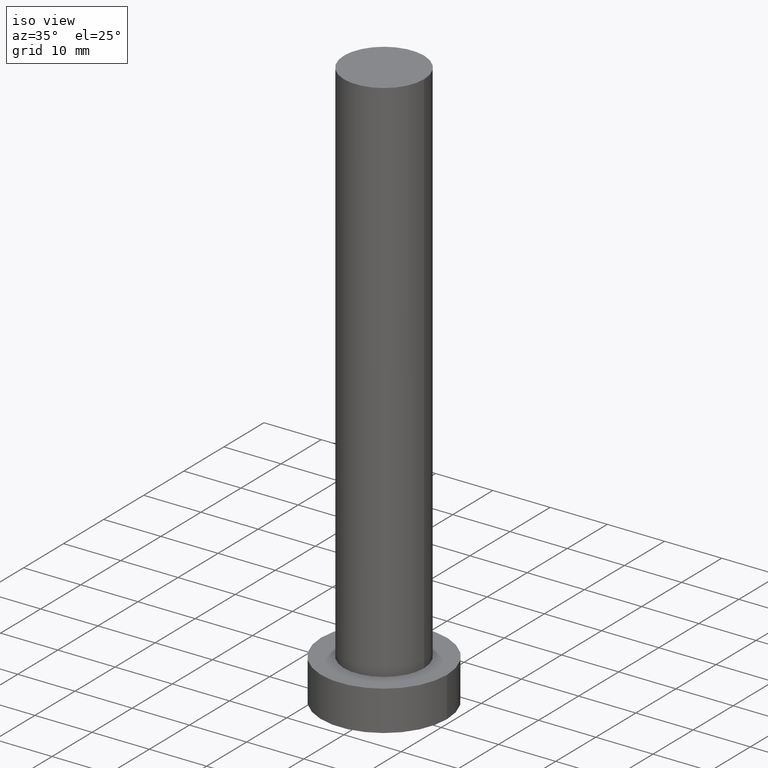
[diagram: clean part render]
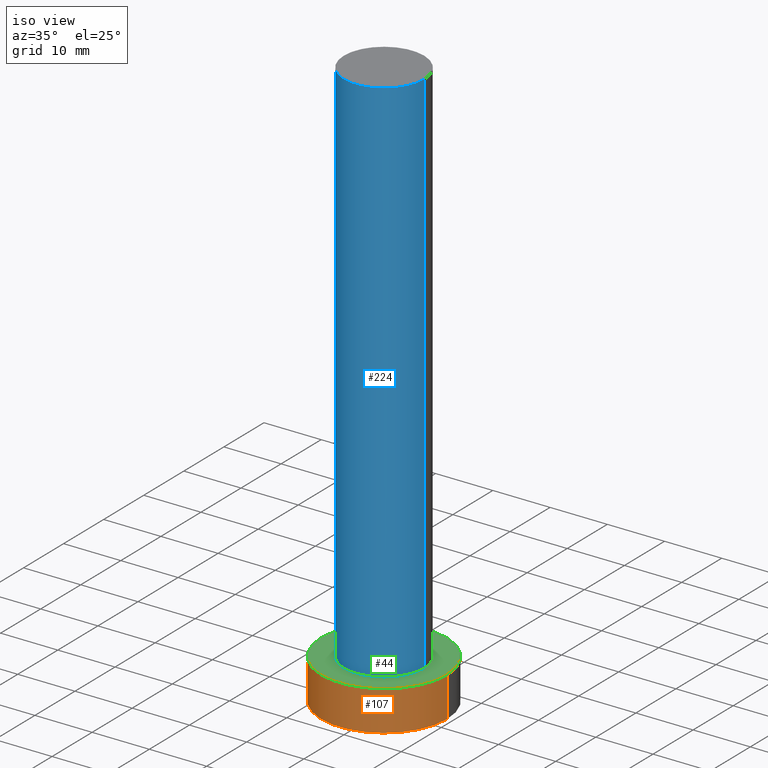
[diagram: same view with three faces highlighted in distinct colors, each labeled with its STEP entity id]
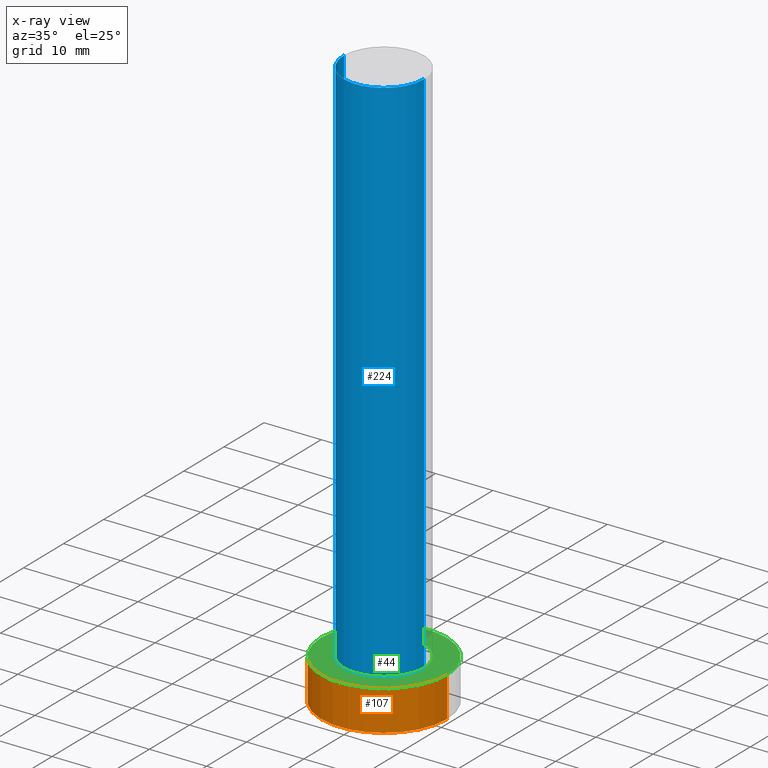
[diagram: x-ray of the same camera — body ghosted, the three highlighted faces saturated]
A machine part, iso view with three faces highlighted in distinct colors.
The next image is the same camera in x-ray (body ghosted, the three faces saturated) — at least one of them is partly hidden behind the body in this view.
Their STEP definitions:

[orange] entity #107 — the highlighted cylindrical surface (partial cylindrical patch) has radius 11 mm, axis along (-0, -0, -1).
#3 = VECTOR ( 'NONE', #215, 1000.000000000000000 ) ;
#14 = CYLINDRICAL_SURFACE ( 'NONE', #163, 11.00000000000000000 ) ;
#15 = VERTEX_POINT ( 'NONE', #96 ) ;
#20 = DIRECTION ( 'NONE',  ( -1.000000000000000000, 0.000000000000000000, 0.000000000000000000 ) ) ;
#21 = CARTESIAN_POINT ( 'NONE',  ( -11.00000000000000000, 0.000000000000000000, 7.000000000000000000 ) ) ;
#29 = CARTESIAN_POINT ( 'NONE',  ( 11.00000000000000000, 1.347111479062088405E-15, 0.000000000000000000 ) ) ;
#36 = AXIS2_PLACEMENT_3D ( 'NONE', #123, #122, #140 ) ;
#37 = DIRECTION ( 'NONE',  ( 0.000000000000000000, 0.000000000000000000, 1.000000000000000000 ) ) ;
#40 = DIRECTION ( 'NONE',  ( 1.000000000000000000, 0.000000000000000000, 0.000000000000000000 ) ) ;
#59 = DIRECTION ( 'NONE',  ( -0.000000000000000000, -0.000000000000000000, -1.000000000000000000 ) ) ;
#60 = CARTESIAN_POINT ( 'NONE',  ( -11.00000000000000000, 0.000000000000000000, 7.000000000000000000 ) ) ;
#76 = EDGE_LOOP ( 'NONE', ( #185, #117, #126, #124 ) ) ;
#81 = LINE ( 'NONE', #237, #3 ) ;
#86 = AXIS2_PLACEMENT_3D ( 'NONE', #255, #37, #40 ) ;
#96 = CARTESIAN_POINT ( 'NONE',  ( -11.00000000000000000, 0.000000000000000000, 0.000000000000000000 ) ) ;
#98 = CIRCLE ( 'NONE', #36, 11.00000000000000000 ) ;
#105 = VERTEX_POINT ( 'NONE', #29 ) ;
#107 = ADVANCED_FACE ( 'NONE', ( #113 ), #14, .T. ) ;
#113 = FACE_OUTER_BOUND ( 'NONE', #76, .T. ) ;
#117 = ORIENTED_EDGE ( 'NONE', *, *, #179, .F. ) ;
#122 = DIRECTION ( 'NONE',  ( 0.000000000000000000, 0.000000000000000000, 1.000000000000000000 ) ) ;
#123 = CARTESIAN_POINT ( 'NONE',  ( 0.000000000000000000, 0.000000000000000000, 7.000000000000000000 ) ) ;
#124 = ORIENTED_EDGE ( 'NONE', *, *, #137, .T. ) ;
#126 = ORIENTED_EDGE ( 'NONE', *, *, #201, .T. ) ;
#131 = EDGE_CURVE ( 'NONE', #151, #105, #81, .T. ) ;
#137 = EDGE_CURVE ( 'NONE', #15, #105, #149, .T. ) ;
#138 = LINE ( 'NONE', #21, #154 ) ;
#140 = DIRECTION ( 'NONE',  ( 1.000000000000000000, 0.000000000000000000, 0.000000000000000000 ) ) ;
#149 = CIRCLE ( 'NONE', #86, 11.00000000000000000 ) ;
#151 = VERTEX_POINT ( 'NONE', #236 ) ;
#154 = VECTOR ( 'NONE', #174, 1000.000000000000000 ) ;
#163 = AXIS2_PLACEMENT_3D ( 'NONE', #171, #59, #20 ) ;
#171 = CARTESIAN_POINT ( 'NONE',  ( 0.000000000000000000, 0.000000000000000000, 7.000000000000000000 ) ) ;
#174 = DIRECTION ( 'NONE',  ( -0.000000000000000000, -0.000000000000000000, -1.000000000000000000 ) ) ;
#179 = EDGE_CURVE ( 'NONE', #190, #151, #98, .T. ) ;
#185 = ORIENTED_EDGE ( 'NONE', *, *, #131, .F. ) ;
#190 = VERTEX_POINT ( 'NONE', #60 ) ;
#201 = EDGE_CURVE ( 'NONE', #190, #15, #138, .T. ) ;
#215 = DIRECTION ( 'NONE',  ( -0.000000000000000000, -0.000000000000000000, -1.000000000000000000 ) ) ;
#236 = CARTESIAN_POINT ( 'NONE',  ( 11.00000000000000000, 1.347111479062088405E-15, 7.000000000000000000 ) ) ;
#237 = CARTESIAN_POINT ( 'NONE',  ( 11.00000000000000000, 1.347111479062088405E-15, 7.000000000000000000 ) ) ;
#255 = CARTESIAN_POINT ( 'NONE',  ( 0.000000000000000000, 0.000000000000000000, 0.000000000000000000 ) ) ;

[blue] entity #224 — the highlighted cylindrical surface (partial cylindrical patch) has radius 7 mm, axis along (-0, -0, -1).
#8 = AXIS2_PLACEMENT_3D ( 'NONE', #80, #136, #196 ) ;
#23 = FACE_OUTER_BOUND ( 'NONE', #57, .T. ) ;
#24 = VERTEX_POINT ( 'NONE', #247 ) ;
#31 = AXIS2_PLACEMENT_3D ( 'NONE', #97, #160, #199 ) ;
#34 = ORIENTED_EDGE ( 'NONE', *, *, #189, .T. ) ;
#39 = CARTESIAN_POINT ( 'NONE',  ( 7.000000000000000000, 8.572527594031471218E-16, 100.0000000000000000 ) ) ;
#48 = VECTOR ( 'NONE', #197, 1000.000000000000000 ) ;
#57 = EDGE_LOOP ( 'NONE', ( #225, #233, #34, #180 ) ) ;
#58 = AXIS2_PLACEMENT_3D ( 'NONE', #229, #128, #205 ) ;
#80 = CARTESIAN_POINT ( 'NONE',  ( 0.000000000000000000, 0.000000000000000000, 100.0000000000000000 ) ) ;
#90 = VERTEX_POINT ( 'NONE', #148 ) ;
#97 = CARTESIAN_POINT ( 'NONE',  ( 0.000000000000000000, 0.000000000000000000, 7.000000000000000000 ) ) ;
#100 = EDGE_CURVE ( 'NONE', #172, #213, #103, .T. ) ;
#103 = CIRCLE ( 'NONE', #58, 7.000000000000000000 ) ;
#121 = LINE ( 'NONE', #161, #48 ) ;
#128 = DIRECTION ( 'NONE',  ( 0.000000000000000000, 0.000000000000000000, 1.000000000000000000 ) ) ;
#129 = EDGE_CURVE ( 'NONE', #90, #24, #158, .T. ) ;
#136 = DIRECTION ( 'NONE',  ( -0.000000000000000000, -0.000000000000000000, -1.000000000000000000 ) ) ;
#148 = CARTESIAN_POINT ( 'NONE',  ( -7.000000000000000000, 0.000000000000000000, 7.000000000000000000 ) ) ;
#157 = LINE ( 'NONE', #235, #214 ) ;
#158 = CIRCLE ( 'NONE', #31, 7.000000000000000000 ) ;
#160 = DIRECTION ( 'NONE',  ( 0.000000000000000000, 0.000000000000000000, 1.000000000000000000 ) ) ;
#161 = CARTESIAN_POINT ( 'NONE',  ( 7.000000000000000000, 8.572527594031471218E-16, 100.0000000000000000 ) ) ;
#162 = DIRECTION ( 'NONE',  ( -0.000000000000000000, -0.000000000000000000, -1.000000000000000000 ) ) ;
#172 = VERTEX_POINT ( 'NONE', #234 ) ;
#176 = CYLINDRICAL_SURFACE ( 'NONE', #8, 7.000000000000000000 ) ;
#180 = ORIENTED_EDGE ( 'NONE', *, *, #129, .T. ) ;
#189 = EDGE_CURVE ( 'NONE', #172, #90, #157, .T. ) ;
#196 = DIRECTION ( 'NONE',  ( -1.000000000000000000, 0.000000000000000000, 0.000000000000000000 ) ) ;
#197 = DIRECTION ( 'NONE',  ( -0.000000000000000000, -0.000000000000000000, -1.000000000000000000 ) ) ;
#199 = DIRECTION ( 'NONE',  ( 1.000000000000000000, 0.000000000000000000, 0.000000000000000000 ) ) ;
#205 = DIRECTION ( 'NONE',  ( 1.000000000000000000, 0.000000000000000000, 0.000000000000000000 ) ) ;
#213 = VERTEX_POINT ( 'NONE', #39 ) ;
#214 = VECTOR ( 'NONE', #162, 1000.000000000000000 ) ;
#224 = ADVANCED_FACE ( 'NONE', ( #23 ), #176, .T. ) ;
#225 = ORIENTED_EDGE ( 'NONE', *, *, #242, .F. ) ;
#229 = CARTESIAN_POINT ( 'NONE',  ( 0.000000000000000000, 0.000000000000000000, 100.0000000000000000 ) ) ;
#233 = ORIENTED_EDGE ( 'NONE', *, *, #100, .F. ) ;
#234 = CARTESIAN_POINT ( 'NONE',  ( -7.000000000000000000, 0.000000000000000000, 100.0000000000000000 ) ) ;
#235 = CARTESIAN_POINT ( 'NONE',  ( -7.000000000000000000, 0.000000000000000000, 100.0000000000000000 ) ) ;
#242 = EDGE_CURVE ( 'NONE', #213, #24, #121, .T. ) ;
#247 = CARTESIAN_POINT ( 'NONE',  ( 7.000000000000000000, 8.572527594031471218E-16, 7.000000000000000000 ) ) ;

[green] entity #44 — the highlighted planar face has unit normal (0, 0, 1).
#19 = DIRECTION ( 'NONE',  ( 0.000000000000000000, 0.000000000000000000, 1.000000000000000000 ) ) ;
#24 = VERTEX_POINT ( 'NONE', #247 ) ;
#31 = AXIS2_PLACEMENT_3D ( 'NONE', #97, #160, #199 ) ;
#36 = AXIS2_PLACEMENT_3D ( 'NONE', #123, #122, #140 ) ;
#42 = EDGE_CURVE ( 'NONE', #151, #190, #147, .T. ) ;
#44 = ADVANCED_FACE ( 'NONE', ( #207, #74 ), #155, .T. ) ;
#50 = CARTESIAN_POINT ( 'NONE',  ( 0.000000000000000000, 0.000000000000000000, 7.000000000000000000 ) ) ;
#56 = CARTESIAN_POINT ( 'NONE',  ( 0.000000000000000000, 0.000000000000000000, 7.000000000000000000 ) ) ;
#60 = CARTESIAN_POINT ( 'NONE',  ( -11.00000000000000000, 0.000000000000000000, 7.000000000000000000 ) ) ;
#62 = EDGE_CURVE ( 'NONE', #24, #90, #112, .T. ) ;
#65 = ORIENTED_EDGE ( 'NONE', *, *, #42, .T. ) ;
#74 = FACE_OUTER_BOUND ( 'NONE', #192, .T. ) ;
#78 = AXIS2_PLACEMENT_3D ( 'NONE', #50, #249, #232 ) ;
#90 = VERTEX_POINT ( 'NONE', #148 ) ;
#95 = DIRECTION ( 'NONE',  ( 1.000000000000000000, 0.000000000000000000, 0.000000000000000000 ) ) ;
#97 = CARTESIAN_POINT ( 'NONE',  ( 0.000000000000000000, 0.000000000000000000, 7.000000000000000000 ) ) ;
#98 = CIRCLE ( 'NONE', #36, 11.00000000000000000 ) ;
#112 = CIRCLE ( 'NONE', #183, 7.000000000000000000 ) ;
#116 = ORIENTED_EDGE ( 'NONE', *, *, #62, .F. ) ;
#122 = DIRECTION ( 'NONE',  ( 0.000000000000000000, 0.000000000000000000, 1.000000000000000000 ) ) ;
#123 = CARTESIAN_POINT ( 'NONE',  ( 0.000000000000000000, 0.000000000000000000, 7.000000000000000000 ) ) ;
#129 = EDGE_CURVE ( 'NONE', #90, #24, #158, .T. ) ;
#134 = CARTESIAN_POINT ( 'NONE',  ( 0.000000000000000000, 0.000000000000000000, 7.000000000000000000 ) ) ;
#140 = DIRECTION ( 'NONE',  ( 1.000000000000000000, 0.000000000000000000, 0.000000000000000000 ) ) ;
#147 = CIRCLE ( 'NONE', #78, 11.00000000000000000 ) ;
#148 = CARTESIAN_POINT ( 'NONE',  ( -7.000000000000000000, 0.000000000000000000, 7.000000000000000000 ) ) ;
#151 = VERTEX_POINT ( 'NONE', #236 ) ;
#155 = PLANE ( 'NONE',  #221 ) ;
#158 = CIRCLE ( 'NONE', #31, 7.000000000000000000 ) ;
#160 = DIRECTION ( 'NONE',  ( 0.000000000000000000, 0.000000000000000000, 1.000000000000000000 ) ) ;
#179 = EDGE_CURVE ( 'NONE', #190, #151, #98, .T. ) ;
#181 = ORIENTED_EDGE ( 'NONE', *, *, #129, .F. ) ;
#183 = AXIS2_PLACEMENT_3D ( 'NONE', #134, #19, #95 ) ;
#190 = VERTEX_POINT ( 'NONE', #60 ) ;
#192 = EDGE_LOOP ( 'NONE', ( #202, #65 ) ) ;
#199 = DIRECTION ( 'NONE',  ( 1.000000000000000000, 0.000000000000000000, 0.000000000000000000 ) ) ;
#202 = ORIENTED_EDGE ( 'NONE', *, *, #179, .T. ) ;
#207 = FACE_BOUND ( 'NONE', #250, .T. ) ;
#221 = AXIS2_PLACEMENT_3D ( 'NONE', #56, #231, #230 ) ;
#230 = DIRECTION ( 'NONE',  ( 1.000000000000000000, 0.000000000000000000, -0.000000000000000000 ) ) ;
#231 = DIRECTION ( 'NONE',  ( 0.000000000000000000, 0.000000000000000000, 1.000000000000000000 ) ) ;
#232 = DIRECTION ( 'NONE',  ( 1.000000000000000000, 0.000000000000000000, 0.000000000000000000 ) ) ;
#236 = CARTESIAN_POINT ( 'NONE',  ( 11.00000000000000000, 1.347111479062088405E-15, 7.000000000000000000 ) ) ;
#247 = CARTESIAN_POINT ( 'NONE',  ( 7.000000000000000000, 8.572527594031471218E-16, 7.000000000000000000 ) ) ;
#249 = DIRECTION ( 'NONE',  ( 0.000000000000000000, 0.000000000000000000, 1.000000000000000000 ) ) ;
#250 = EDGE_LOOP ( 'NONE', ( #181, #116 ) ) ;